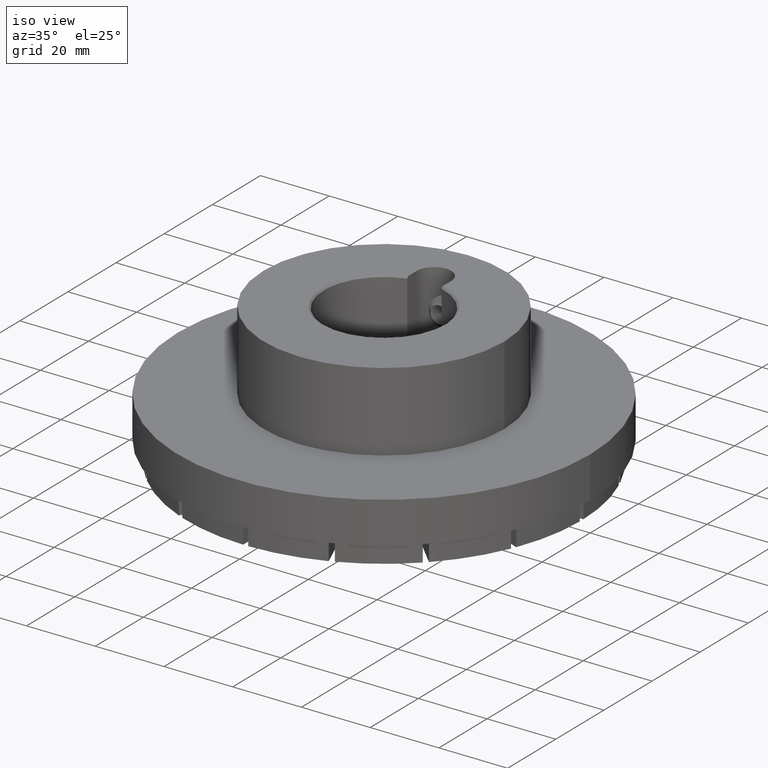
[diagram: clean part render]
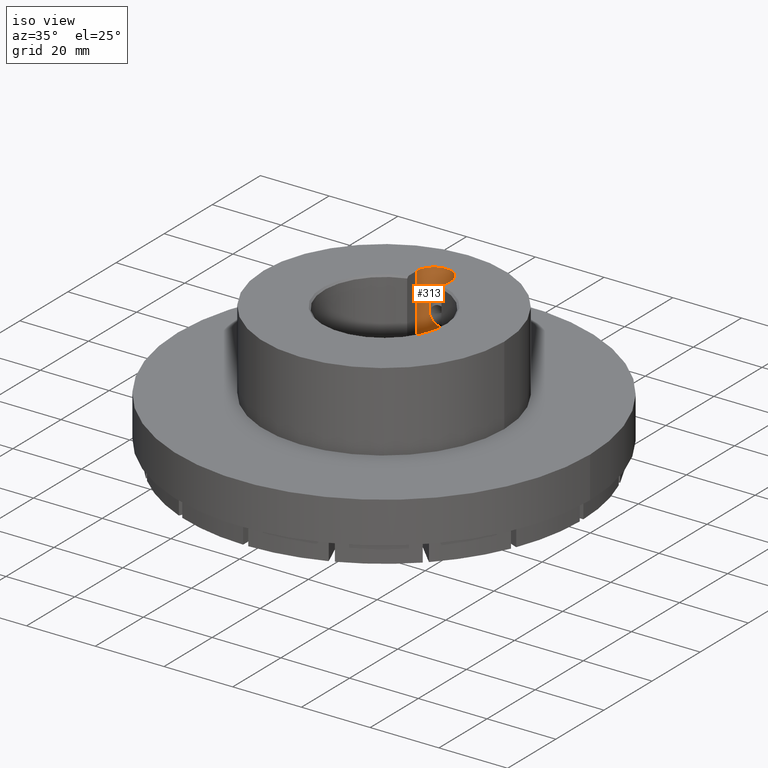
[diagram: same view with one face highlighted and labeled with its STEP entity id]
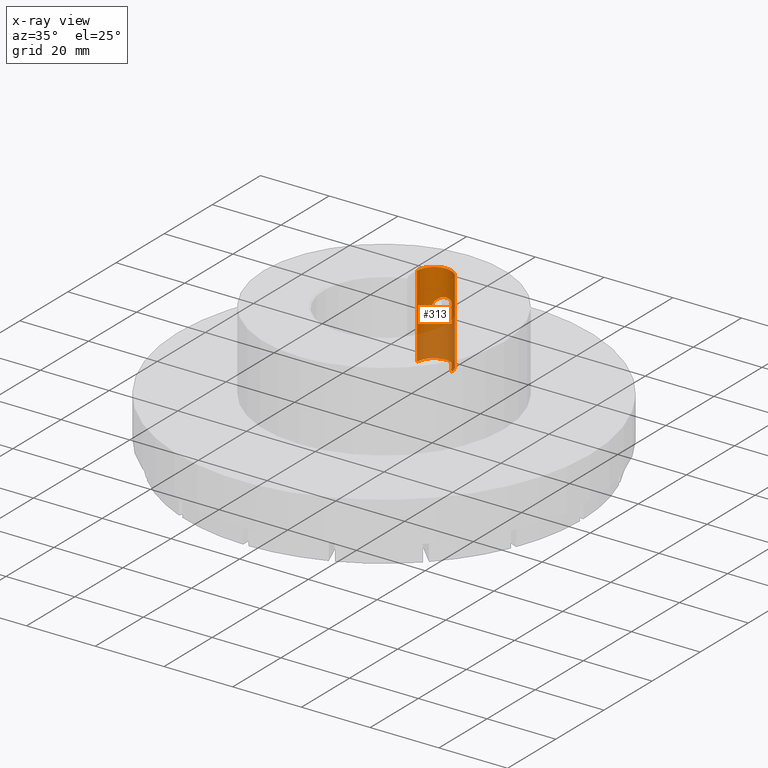
[diagram: x-ray of the same camera — body ghosted, the highlighted face saturated]
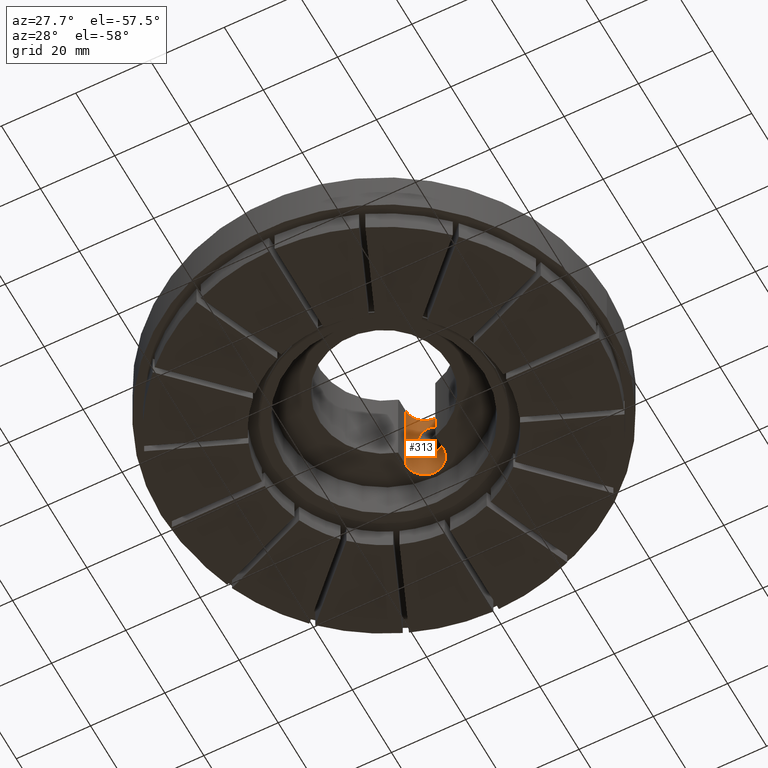
[diagram: same view with one face highlighted and labeled with its STEP entity id]
A machine part, iso view. The second image highlights one B-rep face of the part: STEP entity #313.
The next image is the same camera in x-ray: the body ghosted, the highlighted face saturated — about 40% of this face is hidden behind the body in this view.
A second angle (auxiliary view) of the same face is appended — the face is thin or edge-on in the first view.
In plain terms, the highlighted cylindrical surface (edge-blend (fillet) strip) has radius 5 mm, axis along (0, -0, 1).
Its self-contained STEP definition (entity closure, byte-faithful):
#313 = ADVANCED_FACE( '', ( #472, #473 ), #474, .F. );
#472 = FACE_BOUND( '', #724, .T. );
#473 = FACE_OUTER_BOUND( '', #725, .T. );
#474 = CYLINDRICAL_SURFACE( '', #726, 5.00000000000000 );
#724 = EDGE_LOOP( '', ( #999 ) );
#725 = EDGE_LOOP( '', ( #1000, #1001, #1002, #1003 ) );
#726 = AXIS2_PLACEMENT_3D( '', #1004, #1005, #1006 );
#999 = ORIENTED_EDGE( '', *, *, #1788, .F. );
#1000 = ORIENTED_EDGE( '', *, *, #1783, .F. );
#1001 = ORIENTED_EDGE( '', *, *, #1787, .F. );
#1002 = ORIENTED_EDGE( '', *, *, #1789, .F. );
#1003 = ORIENTED_EDGE( '', *, *, #1790, .T. );
#1004 = CARTESIAN_POINT( '', ( 8.67361737988404E-016, 20.8000000000000, 41.0000100000000 ) );
#1005 = DIRECTION( '', ( 0.000000000000000, -0.000000000000000, 1.00000000000000 ) );
#1006 = DIRECTION( '', ( -1.00000000000000, 0.000000000000000, 0.000000000000000 ) );
#1783 = EDGE_CURVE( '', #2045, #2047, #2048, .T. );
#1787 = EDGE_CURVE( '', #2052, #2045, #2054, .T. );
#1788 = EDGE_CURVE( '', #2055, #2055, #2056, .T. );
#1789 = EDGE_CURVE( '', #2057, #2052, #2058, .T. );
#1790 = EDGE_CURVE( '', #2057, #2047, #2059, .T. );
#2045 = VERTEX_POINT( '', #2482 );
#2047 = VERTEX_POINT( '', #2485 );
#2048 = CIRCLE( '', #2486, 5.00000000000000 );
#2052 = VERTEX_POINT( '', #2491 );
#2054 = LINE( '', #2494, #2495 );
#2055 = VERTEX_POINT( '', #2496 );
#2056 = B_SPLINE_CURVE_WITH_KNOTS( '', 3, ( #2497, #2498, #2499, #2500, #2501, #2502, #2503, #2504, #2505, #2506, #2507, #2508, #2509, #2510, #2511, #2512, #2513, #2514, #2515, #2516, #2517, #2518, #2519, #2520, #2521, #2522, #2523, #2524, #2525, #2526, #2527, #2528, #2529, #2530, #2531, #2532, #2533, #2534, #2535, #2536, #2537, #2538, #2539, #2540, #2541, #2542, #2543, #2544, #2545, #2546, #2547, #2548, #2549, #2550, #2551, #2552, #2553, #2554, #2555, #2556, #2557, #2558, #2559, #2560, #2561, #2562 ), .UNSPECIFIED., .T., .F., ( 2, 2, 2, 2, 2, 2, 2, 2, 2, 2, 2, 2, 2, 2, 2, 2, 2, 2, 2, 2, 2, 2, 2, 2, 2, 2, 2, 2, 2, 2, 2, 2, 2, 2, 2 ), ( -0.000681385816483370, 0.000000000000000, 0.000681385816483369, 0.00136277163296674, 0.00204415744945011, 0.00272554326593348, 0.00340692908241685, 0.00408831489890022, 0.00476970071538358, 0.00545108653186695, 0.00613247234835032, 0.00681385816483369, 0.00749524398131706, 0.00817662979780043, 0.00885801561428380, 0.00953940143076717, 0.0102207872472505, 0.0109021730637339, 0.0115835588802173, 0.0122649446967006, 0.0129463305131840, 0.0136277163296674, 0.0143091021461508, 0.0149904879626342, 0.0156718737791175, 0.0163532595956009, 0.0170346454120843, 0.0177160312285677, 0.0183974170450511, 0.0190788028615344, 0.0197601886780178, 0.0204415744945012, 0.0211229603109846, 0.0218043461274679, 0.0224857319439513 ), .UNSPECIFIED. );
#2057 = VERTEX_POINT( '', #2563 );
#2058 = CIRCLE( '', #2564, 5.00000000000000 );
#2059 = LINE( '', #2565, #2566 );
#2482 = CARTESIAN_POINT( '', ( 5.00000000000000, 20.8000000000000, 17.0000000000000 ) );
#2485 = CARTESIAN_POINT( '', ( -5.00000000000000, 20.8000000000000, 17.0000000000000 ) );
#2486 = AXIS2_PLACEMENT_3D( '', #3238, #3239, #3240 );
#2491 = CARTESIAN_POINT( '', ( 5.00000000000000, 20.8000000000000, 41.0000000000000 ) );
#2494 = CARTESIAN_POINT( '', ( 5.00000000000000, 20.8000000000000, 41.0000100000000 ) );
#2495 = VECTOR( '', #3246, 1000.00000000000 );
#2496 = CARTESIAN_POINT( '', ( -3.37500000000000, 24.4890886408434, 30.0000000000000 ) );
#2497 = CARTESIAN_POINT( '', ( -3.37500000000000, 24.4890886408434, 30.2313610684477 ) );
#2498 = CARTESIAN_POINT( '', ( -3.37499999999999, 24.4890886408434, 29.7686389315523 ) );
#2499 = CARTESIAN_POINT( '', ( -3.35149786276922, 24.5109367401436, 29.5434992713643 ) );
#2500 = CARTESIAN_POINT( '', ( -3.26161694212504, 24.5901773489293, 29.1040168739120 ) );
#2501 = CARTESIAN_POINT( '', ( -3.19422648027429, 24.6482015384470, 28.8886276873972 ) );
#2502 = CARTESIAN_POINT( '', ( -3.02453865186409, 24.7829516481086, 28.4865941826840 ) );
#2503 = CARTESIAN_POINT( '', ( -2.92117774137852, 24.8604997493698, 28.2960261345284 ) );
#2504 = CARTESIAN_POINT( '', ( -2.68146646271019, 25.0226384193674, 27.9392855752686 ) );
#2505 = CARTESIAN_POINT( '', ( -2.54681078669566, 25.1061570082807, 27.7751844918688 ) );
#2506 = CARTESIAN_POINT( '', ( -2.24670289110851, 25.2700737669841, 27.4724764397666 ) );
#2507 = CARTESIAN_POINT( '', ( -2.07954816773470, 25.3511006486837, 27.3330692920399 ) );
#2508 = CARTESIAN_POINT( '', ( -1.72356681329965, 25.4974839155095, 27.0902994272466 ) );
#2509 = CARTESIAN_POINT( '', ( -1.53386218248315, 25.5635697561816, 26.9855903424589 ) );
#2510 = CARTESIAN_POINT( '', ( -1.12796020976693, 25.6756574717717, 26.8114102578865 ) );
#2511 = CARTESIAN_POINT( '', ( -0.909954595968850, 25.7215712585581, 26.7421374136115 ) );
#2512 = CARTESIAN_POINT( '', ( -0.467531525167553, 25.7831009715602, 26.6499104084383 ) );
#2513 = CARTESIAN_POINT( '', ( -0.238132881148874, 25.7996107174956, 26.6255767157665 ) );
#2514 = CARTESIAN_POINT( '', ( 0.221495009130587, 25.8003754415555, 26.6244437893598 ) );
#2515 = CARTESIAN_POINT( '', ( 0.447698228403653, 25.7849865292827, 26.6471138317545 ) );
#2516 = CARTESIAN_POINT( '', ( 0.893191124297037, 25.7247064903731, 26.7374106944935 ) );
#2517 = CARTESIAN_POINT( '', ( 1.11057941275918, 25.6796872253105, 26.8052655466586 ) );
#2518 = CARTESIAN_POINT( '', ( 1.51870451209888, 25.5684662789867, 26.9778730231273 ) );
#2519 = CARTESIAN_POINT( '', ( 1.71381517511079, 25.5011159961436, 27.0844329888486 ) );
#2520 = CARTESIAN_POINT( '', ( 2.07300574369584, 25.3541520890547, 27.3278584173816 ) );
#2521 = CARTESIAN_POINT( '', ( 2.23785551526260, 25.2745650986475, 27.4645278048648 ) );
#2522 = CARTESIAN_POINT( '', ( 2.54078218465688, 25.1097744743032, 27.7681750853561 ) );
#2523 = CARTESIAN_POINT( '', ( 2.67716181307045, 25.0253402371041, 27.9338929207814 ) );
#2524 = CARTESIAN_POINT( '', ( 2.91567371655158, 24.8644239777936, 28.2868623479796 ) );
#2525 = CARTESIAN_POINT( '', ( 3.01897805158996, 24.7872204977072, 28.4751800349503 ) );
#2526 = CARTESIAN_POINT( '', ( 3.19179974456990, 24.6502688430656, 28.8811976079935 ) );
#2527 = CARTESIAN_POINT( '', ( 3.25840806369630, 24.5929556379703, 29.0921778154342 ) );
#2528 = CARTESIAN_POINT( '', ( 3.35014986207551, 24.5121734176635, 29.5332451071640 ) );
#2529 = CARTESIAN_POINT( '', ( 3.37445854775610, 24.4895839914279, 29.7646203204838 ) );
#2530 = CARTESIAN_POINT( '', ( 3.37552297884477, 24.4886101907922, 30.2195875755691 ) );
#2531 = CARTESIAN_POINT( '', ( 3.35256976322402, 24.5099706049137, 30.4496001958144 ) );
#2532 = CARTESIAN_POINT( '', ( 3.26250332074308, 24.5894165763014, 30.8932728785207 ) );
#2533 = CARTESIAN_POINT( '', ( 3.19656275715087, 24.6462910674690, 31.1051664208671 ) );
#2534 = CARTESIAN_POINT( '', ( 3.02526990069875, 24.7824251987981, 31.5123320753533 ) );
#2535 = CARTESIAN_POINT( '', ( 2.92266832653706, 24.8593773488589, 31.7012000378449 ) );
#2536 = CARTESIAN_POINT( '', ( 2.68538005528701, 25.0201029094133, 32.0554332084437 ) );
#2537 = CARTESIAN_POINT( '', ( 2.54936896956352, 25.1046742164983, 32.2219895181103 ) );
#2538 = CARTESIAN_POINT( '', ( 2.24795556970989, 25.2694740193639, 32.5265025862198 ) );
#2539 = CARTESIAN_POINT( '', ( 2.08414503980011, 25.3490038302671, 32.6633660558851 ) );
#2540 = CARTESIAN_POINT( '', ( 1.72802535169144, 25.4958518693225, 32.9070788909962 ) );
#2541 = CARTESIAN_POINT( '', ( 1.53317392404200, 25.5638349131088, 33.0148333738024 ) );
#2542 = CARTESIAN_POINT( '', ( 1.12533619368749, 25.6763063697735, 33.1895863374946 ) );
#2543 = CARTESIAN_POINT( '', ( 0.912159100374735, 25.7212731290079, 33.2574160192988 ) );
#2544 = CARTESIAN_POINT( '', ( 0.464959206943238, 25.7834502476266, 33.3506128220162 ) );
#2545 = CARTESIAN_POINT( '', ( 0.236473371803147, 25.7995958143097, 33.3744012053104 ) );
#2546 = CARTESIAN_POINT( '', ( -0.219060621393099, 25.8003890254849, 33.3755763351059 ) );
#2547 = CARTESIAN_POINT( '', ( -0.450915356610657, 25.7846830422355, 33.3524360042078 ) );
#2548 = CARTESIAN_POINT( '', ( -0.895778619555733, 25.7242228173717, 33.2618602799450 ) );
#2549 = CARTESIAN_POINT( '', ( -1.11017763439514, 25.6798880630089, 33.1950599808696 ) );
#2550 = CARTESIAN_POINT( '', ( -1.52309854133753, 25.5671765984473, 33.0201115036768 ) );
#2551 = CARTESIAN_POINT( '', ( -1.71512291391801, 25.5006385455469, 32.9148000753101 ) );
#2552 = CARTESIAN_POINT( '', ( -2.07425043587793, 25.3535847938726, 32.6711778709278 ) );
#2553 = CARTESIAN_POINT( '', ( -2.24183292278614, 25.2725366020291, 32.5318712230647 ) );
#2554 = CARTESIAN_POINT( '', ( -2.54295064100826, 25.1084568638404, 32.2292574506473 ) );
#2555 = CARTESIAN_POINT( '', ( -2.67814385664471, 25.0247666202408, 32.0650822790025 ) );
#2556 = CARTESIAN_POINT( '', ( -2.91893505477328, 24.8621331413926, 31.7078751365218 ) );
#2557 = CARTESIAN_POINT( '', ( -3.02259047102155, 24.7844359452972, 31.5172652365197 ) );
#2558 = CARTESIAN_POINT( '', ( -3.19266425332381, 24.6495035943918, 31.1158144644204 ) );
#2559 = CARTESIAN_POINT( '', ( -3.26038813945700, 24.5912460664141, 30.9008632754127 ) );
#2560 = CARTESIAN_POINT( '', ( -3.35138032955942, 24.5110547614734, 30.4581870224498 ) );
#2561 = CARTESIAN_POINT( '', ( -3.37500000000000, 24.4890886408434, 30.2313610684477 ) );
#2562 = CARTESIAN_POINT( '', ( -3.37499999999999, 24.4890886408434, 29.7686389315523 ) );
#2563 = CARTESIAN_POINT( '', ( -5.00000000000000, 20.8000000000000, 41.0000000000000 ) );
#2564 = AXIS2_PLACEMENT_3D( '', #3247, #3248, #3249 );
#2565 = CARTESIAN_POINT( '', ( -5.00000000000000, 20.8000000000000, 41.0000100000000 ) );
#2566 = VECTOR( '', #3250, 1000.00000000000 );
#3238 = CARTESIAN_POINT( '', ( 8.67361737988404E-016, 20.8000000000000, 17.0000000000000 ) );
#3239 = DIRECTION( '', ( 0.000000000000000, 0.000000000000000, 1.00000000000000 ) );
#3240 = DIRECTION( '', ( 1.00000000000000, 0.000000000000000, -0.000000000000000 ) );
#3246 = DIRECTION( '', ( -0.000000000000000, -0.000000000000000, -1.00000000000000 ) );
#3247 = CARTESIAN_POINT( '', ( 8.67361737988404E-016, 20.8000000000000, 41.0000000000000 ) );
#3248 = DIRECTION( '', ( -0.000000000000000, 0.000000000000000, -1.00000000000000 ) );
#3249 = DIRECTION( '', ( -1.00000000000000, 0.000000000000000, 0.000000000000000 ) );
#3250 = DIRECTION( '', ( -0.000000000000000, -0.000000000000000, -1.00000000000000 ) );